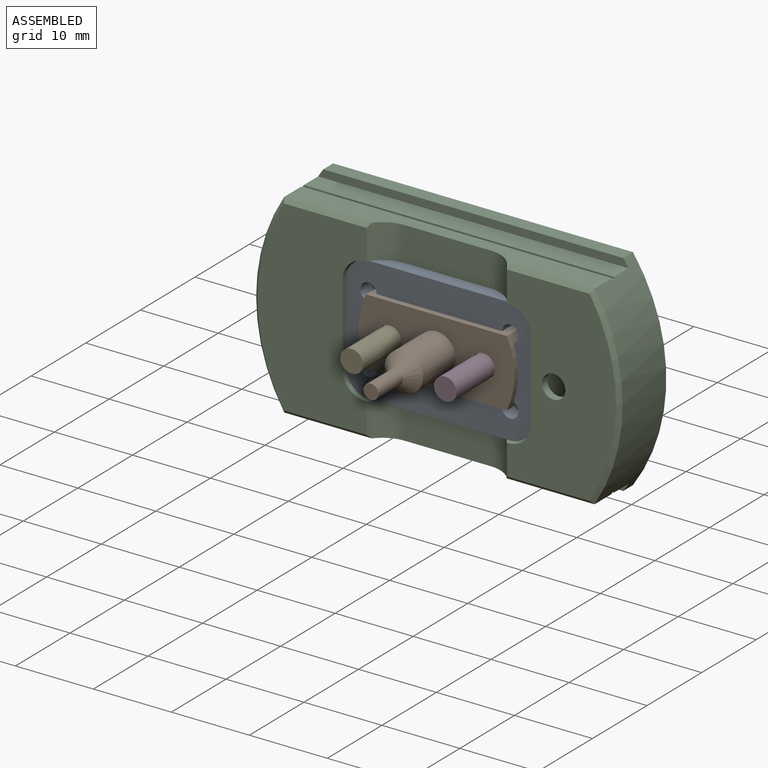
[diagram: assembled view]
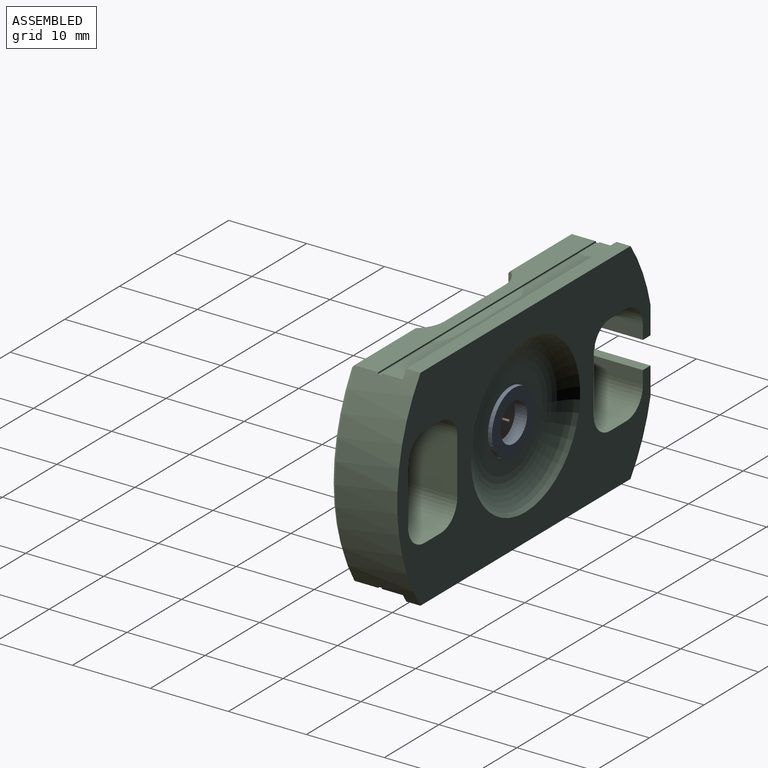
[diagram: assembled view, second angle]
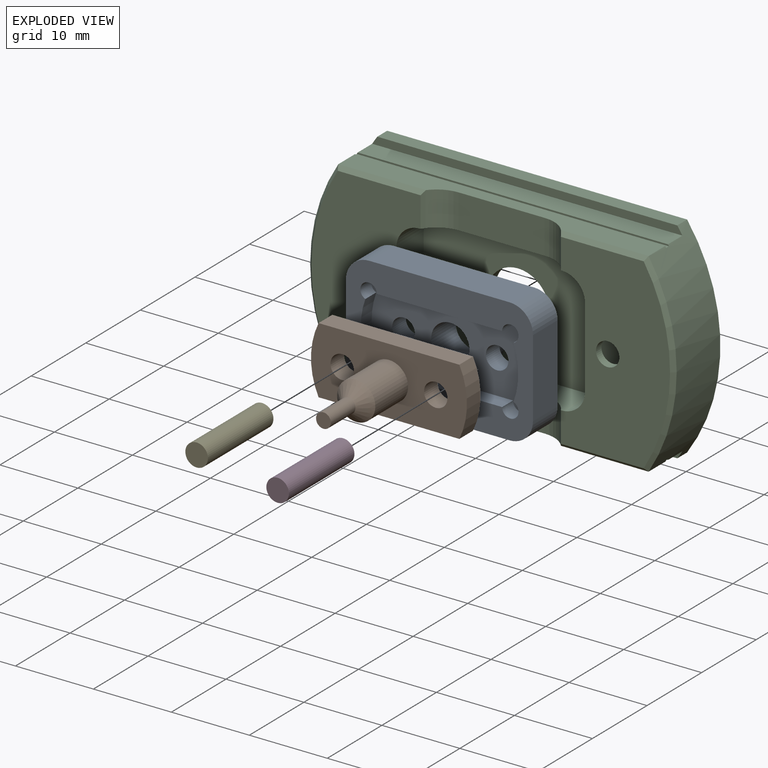
[diagram: exploded view]
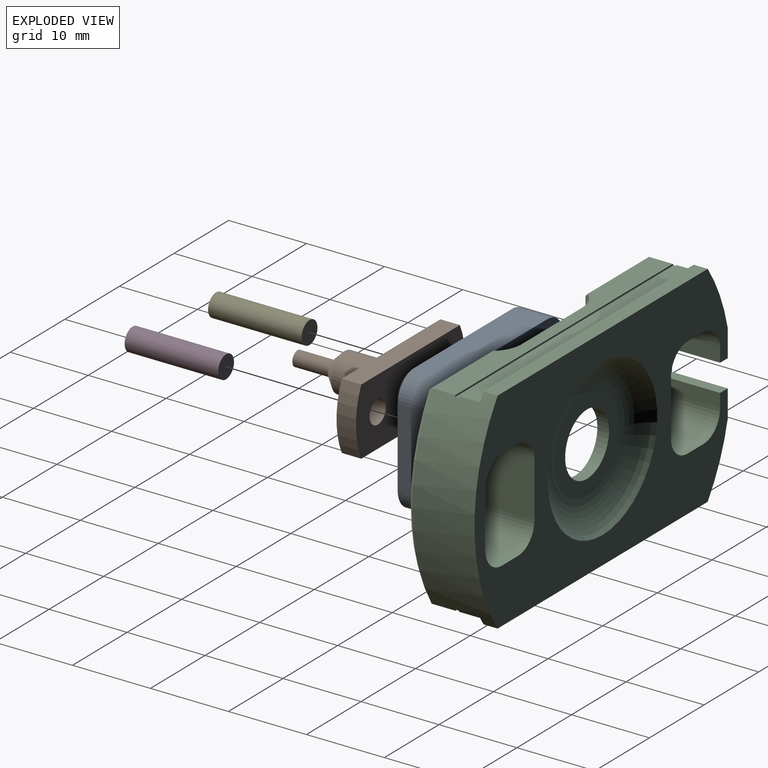
[diagram: exploded view, second angle]
ASSEMBLY  parts=5 mates=4
PART A: 24 faces, bbox 24x6.5x16 mm
  f0: plane 20.28x10.9mm, normal (0,-1,0), area 149.4mm2, adj f8,f9,f11,f13,f14,f15,f16,f20
  f1: plane 18x4.5mm, normal (0,0,-1), area 81mm2, adj f2,f10,f12,f17
  f2: cylinder r=3mm len=4.5mm, axis (0,1,0), area 21.2mm2, adj f1,f3,f12,f17
  f3: plane 10x4.5mm, normal (1,0,0), area 45mm2, adj f2,f4,f12,f17
  f4: cylinder r=3mm len=4.5mm, axis (0,1,0), area 21.2mm2, adj f3,f5,f12,f17
  f5: plane 18x4.5mm, normal (0,0,1), area 81mm2, adj f4,f6,f12,f17
  f6: cylinder r=3mm len=4.5mm, axis (0,1,0), area 21.2mm2, adj f5,f7,f12,f17
  f7: plane 10x4.5mm, normal (-1,0,0), area 45mm2, adj f6,f10,f12,f17
  f8: cylinder r=1.45mm len=2.9mm, axis (0,1,0), area 22.8mm2, adj f0,f12
  f9: cylinder r=1.45mm len=2.9mm, axis (0,1,0), area 22.8mm2, adj f0,f12
  f10: cylinder r=3mm len=4.5mm, axis (0,1,0), area 21.2mm2, adj f1,f7,f12,f17
  f11: cylinder r=2.45mm len=4.9mm, axis (0,1,0), area 69.3mm2, adj f0,f19
  f12: plane 24x16mm, normal (0,1,0), area 312.8mm2, adj f1,f2,f3,f4,f5,f6,f7,f8
  f13: plane 16.08x2mm, normal (0,0,1), area 32.2mm2, adj f0,f17,f20,f23
  f14: cylinder r=10.1mm len=6.86mm, axis (0,1,0), area 14mm2, adj f0,f17,f22,f23
  f15: plane 16.08x2mm, normal (0,0,-1), area 32.2mm2, adj f0,f17,f21,f22
  f16: cylinder r=10.1mm len=6.86mm, axis (0,1,0), area 14mm2, adj f0,f17,f20,f21
  f17: plane 24x16mm, normal (0,-1,0), area 194.8mm2, adj f1,f2,f3,f4,f5,f6,f7,f10
  f18: cylinder r=4mm len=8mm, axis (0,-1,0), area 50.3mm2, adj f12,f19
  f19: plane 8x8mm, normal (0,1,0), area 31.4mm2, adj f11,f18
  f20: cylinder r=1.05mm len=2.1mm, axis (0,-1,0), area 9.1mm2, adj f0,f13,f16,f17
  f21: cylinder r=1.05mm len=2.1mm, axis (0,-1,0), area 9.1mm2, adj f0,f15,f16,f17
  f22: cylinder r=1.05mm len=2.1mm, axis (0,-1,0), area 9.1mm2, adj f0,f14,f15,f17
  f23: cylinder r=1.05mm len=2.1mm, axis (0,-1,0), area 9.1mm2, adj f0,f13,f14,f17
PART B: 16 faces, bbox 20x18.5x8.6 mm
  f0: cylinder r=2.4mm len=4.8mm, axis (0,-1,0), area 45.2mm2, adj f1,f7
  f1: plane 4.8x4.8mm, normal (0,1,0), area 18mm2, adj f0,f14
  f2: cylinder r=10mm len=8.6mm, axis (0,1,0), area 22.2mm2, adj f3,f5,f6,f7
  f3: plane 18.06x2.5mm, normal (0,0,-1), area 45.1mm2, adj f2,f4,f6,f7
  f4: cylinder r=10mm len=8.6mm, axis (0,1,0), area 22.2mm2, adj f3,f5,f6,f7
  f5: plane 18.06x2.5mm, normal (0,0,1), area 45.1mm2, adj f2,f4,f6,f7
  f6: plane 20x8.6mm, normal (0,-1,0), area 133.5mm2, adj f2,f3,f4,f5,f8,f11,f12
  f7: plane 20x8.6mm, normal (0,1,0), area 134.3mm2, adj f0,f2,f3,f4,f5,f11,f12
  f8: cylinder r=2.45mm len=6mm, axis (0,1,0), area 92.4mm2, adj f6,f13
  f9: cylinder r=0.95mm len=4.5mm, axis (0,1,0), area 26.9mm2, adj f10,f13
  f10: plane 1.9x1.9mm, normal (0,-1,0), area 2.8mm2, adj f9
  f11: cylinder r=1.5mm len=3mm, axis (0,-1,0), area 23.6mm2, adj f6,f7
  f12: cylinder r=1.5mm len=3mm, axis (0,-1,0), area 23.6mm2, adj f6,f7
  f13: cone r=0.95mm half-angle=45deg, axis (0,1,0), area 22.7mm2, adj f8,f9
  f14: cylinder r=0.15mm len=1mm, axis (0,-1,0), area 0.9mm2, adj f1,f15
  f15: plane 0.3x0.3mm, normal (0,1,0), area 0.1mm2, adj f14
PART C: 67 faces, bbox 47x11.5x27 mm
  f0: plane 24x14mm, normal (0,-1,0), area 256.4mm2, adj f2,f3,f4,f5,f38,f42,f53,f55
  f1: plane 39.8x3.05mm, normal (0,0,1), area 98.3mm2, adj f3,f7,f8,f35,f43,f60,f64,f65
  f2: plane 11.25x0.51mm, normal (0,-0.71,-0.71), area 7.7mm2, adj f0,f9,f42,f63
  f3: plane 11.25x0.51mm, normal (0,-0.71,0.71), area 7.7mm2, adj f0,f1,f42,f65
  f4: plane 18.2x5mm, normal (0,0,1), area 59mm2, adj f0,f6,f52,f55,f58,f61,f62,f63
  f5: plane 18.2x5mm, normal (0,0,-1), area 59mm2, adj f0,f6,f52,f56,f57,f60,f64,f65
  f6: plane 24x14mm, normal (0,-1,0), area 263.5mm2, adj f4,f5,f40,f41,f43,f54,f57,f58
  f7: cylinder r=23.5mm len=27mm, axis (0,1,0), area 135.1mm2, adj f1,f9,f10,f11,f12,f13,f14,f15
  f8: cylinder r=23.5mm len=27mm, axis (0,1,0), area 215mm2, adj f1,f9,f10,f11,f12,f13,f14,f15
  f9: plane 39.8x3.05mm, normal (0,0,-1), area 98.3mm2, adj f2,f7,f8,f33,f40,f61,f62,f63
  f10: plane 46.4x27mm, normal (0,1,0), area 653.4mm2, adj f7,f8,f13,f15,f17,f18,f19,f20
  f11: plane 39.8x2.65mm, normal (0,0,1), area 105.5mm2, adj f7,f8,f16,f36
  f12: plane 39.8x2.65mm, normal (0,0,-1), area 105.5mm2, adj f7,f8,f14,f32
  f13: plane 38.47x1.8mm, normal (0,0,-1), area 69.2mm2, adj f7,f8,f10,f14
  f14: plane 39.8x1mm, normal (0,-1,0), area 39.1mm2, adj f7,f8,f12,f13
  f15: plane 38.47x1.8mm, normal (0,0,1), area 69.2mm2, adj f7,f8,f10,f16
  f16: plane 39.8x1mm, normal (0,-1,0), area 39.1mm2, adj f7,f8,f11,f15
  f17: plane 7.5x3mm, normal (0,0,1), area 22.5mm2, adj f10,f21,f44,f47
  f18: plane 7.5x7mm, normal (1,0,0), area 52.5mm2, adj f10,f21,f44,f45
  f19: plane 7.5x3mm, normal (0,0,-1), area 22.5mm2, adj f10,f21,f45,f46
  f20: plane 7.5x7mm, normal (-1,0,0), area 52.5mm2, adj f10,f21,f46,f47
  f21: plane 13x9mm, normal (0,1,0), area 102.2mm2, adj f17,f18,f19,f20,f38,f44,f45,f46
  f22: plane 13x11mm, normal (0,1,0), area 118.4mm2, adj f7,f23,f24,f25,f26,f27,f28,f29
  f23: plane 7.5x3.53mm, normal (-1,0,0), area 26.4mm2, adj f7,f10,f22,f26
  f24: plane 7.5x3.53mm, normal (-1,0,0), area 26.4mm2, adj f7,f10,f22,f27
  f25: plane 7.5x1.75mm, normal (1,0,0), area 13.1mm2, adj f10,f22,f26,f48
  f26: plane 7.5x1.4mm, normal (0,0,1), area 10.5mm2, adj f10,f22,f23,f25
  f27: plane 7.5x1.4mm, normal (0,0,-1), area 10.5mm2, adj f10,f22,f24,f28
  f28: plane 7.5x1.75mm, normal (1,0,0), area 13.1mm2, adj f10,f22,f27,f51
  f29: plane 7.5x3mm, normal (0,0,-1), area 22.5mm2, adj f10,f22,f50,f51
  f30: plane 7.5x7mm, normal (-1,0,0), area 52.5mm2, adj f10,f22,f49,f50
  f31: plane 7.5x3mm, normal (0,0,1), area 22.5mm2, adj f10,f22,f48,f49
  f32: plane 40.05x0.2mm, normal (0,-1,0), area 8mm2, adj f7,f8,f12,f34
  f33: plane 40.05x0.2mm, normal (0,1,0), area 8mm2, adj f7,f8,f9,f34
  f34: plane 40.05x0.5mm, normal (0,0,-1), area 20mm2, adj f7,f8,f32,f33
  f35: plane 40.05x0.2mm, normal (0,1,0), area 8mm2, adj f1,f7,f8,f37
  f36: plane 40.05x0.2mm, normal (0,-1,0), area 8mm2, adj f7,f8,f11,f37
  f37: plane 40.05x0.5mm, normal (0,0,1), area 20mm2, adj f7,f8,f35,f36
  f38: cylinder r=1.5mm len=3mm, axis (0,-1,0), area 9.4mm2, adj f0,f21
  f39: plane 12x12mm, normal (0,1,0), area 62.2mm2, adj f59,f66
  f40: plane 11.25x0.51mm, normal (0,-0.71,-0.71), area 7.7mm2, adj f6,f9,f41,f62
  f41: cone r=23mm half-angle=45deg, axis (0,1,0), area 18.2mm2, adj f6,f7,f40,f43
  f42: cone r=23mm half-angle=45deg, axis (0,1,0), area 18.2mm2, adj f0,f2,f3,f8
  f43: plane 11.25x0.51mm, normal (0,-0.71,0.71), area 7.7mm2, adj f1,f6,f41,f64
  f44: cylinder r=3mm len=7.5mm, axis (0,1,0), area 35.3mm2, adj f10,f17,f18,f21
  f45: cylinder r=3mm len=7.5mm, axis (0,-1,0), area 35.3mm2, adj f10,f18,f19,f21
  f46: cylinder r=3mm len=7.5mm, axis (0,1,0), area 35.3mm2, adj f10,f19,f20,f21
  f47: cylinder r=3mm len=7.5mm, axis (0,-1,0), area 35.3mm2, adj f10,f17,f20,f21
  f48: cylinder r=3mm len=7.5mm, axis (0,1,0), area 35.3mm2, adj f10,f22,f25,f31
  f49: cylinder r=3mm len=7.5mm, axis (0,-1,0), area 35.3mm2, adj f10,f22,f30,f31
  f50: cylinder r=3mm len=7.5mm, axis (0,1,0), area 35.3mm2, adj f10,f22,f29,f30
  f51: cylinder r=3mm len=7.5mm, axis (0,-1,0), area 35.3mm2, adj f10,f22,f28,f29
  f52: plane 24.2x16.2mm, normal (0,-1,0), area 333.4mm2, adj f4,f5,f53,f54,f55,f56,f57,f58
  f53: plane 10.2x5mm, normal (-1,0,0), area 51mm2, adj f0,f52,f55,f56
  f54: plane 10.2x5mm, normal (1,0,0), area 51mm2, adj f6,f52,f57,f58
  f55: cylinder r=3mm len=5mm, axis (0,-1,0), area 23.6mm2, adj f0,f4,f52,f53
  f56: cylinder r=3mm len=5mm, axis (0,1,0), area 23.6mm2, adj f0,f5,f52,f53
  f57: cylinder r=3mm len=5mm, axis (0,-1,0), area 23.6mm2, adj f5,f6,f52,f54
  f58: cylinder r=3mm len=5mm, axis (0,1,0), area 23.6mm2, adj f4,f6,f52,f54
  f59: cylinder r=4.03mm len=8.05mm, axis (0,1,0), area 37.9mm2, adj f39,f52
  f60: plane 11.07x4.4mm, normal (0,-1,0), area 48.7mm2, adj f1,f5,f64,f65
  f61: plane 11.07x4.4mm, normal (0,-1,0), area 48.7mm2, adj f4,f9,f62,f63
  f62: cylinder r=4mm len=4.4mm, axis (0,0,1), area 18.3mm2, adj f4,f6,f9,f40,f61
  f63: cylinder r=4mm len=4.4mm, axis (0,0,1), area 18.3mm2, adj f0,f2,f4,f9,f61
  f64: cylinder r=4mm len=4.4mm, axis (0,0,1), area 18.3mm2, adj f1,f5,f6,f43,f60
  f65: cylinder r=4mm len=4.4mm, axis (0,0,1), area 18.3mm2, adj f0,f1,f3,f5,f60
  f66: torus R=6mm, axis (0,-1,0), area 237.6mm2, adj f10,f39
PART D: 3 faces, bbox 2.9x12x2.9 mm
  f0: cylinder r=1.45mm len=12mm, axis (0,1,0), area 109.3mm2, adj f1,f2
  f1: plane 2.9x2.9mm, normal (0,-1,0), area 6.6mm2, adj f0
  f2: plane 2.9x2.9mm, normal (0,1,0), area 6.6mm2, adj f0
PART E: same geometry as D
PLACE A t=(-0.81,2.53,5.82)mm
PLACE B t=(-0.81,2.49,5.82)mm
PLACE C t=(-0.81,2.53,5.82)mm fixed
PLACE D t=(11.19,5.03,5.82)mm
PLACE E t=(-0.81,5.03,5.82)mm
MATE slider C.f59 <-> A.f18  axis (0,-1,0) through (-0.81,-0.97,5.82)mm
MATE fastened E.f0 <-> A.f9  axis (0,1,0) through (-6.81,-0.97,5.82)mm
MATE slider B.f0 <-> A.f11  axis (0,1,0) through (-0.81,-3.51,5.82)mm
MATE fastened D.f0 <-> A.f8  axis (0,1,0) through (5.19,-0.97,5.82)mm
